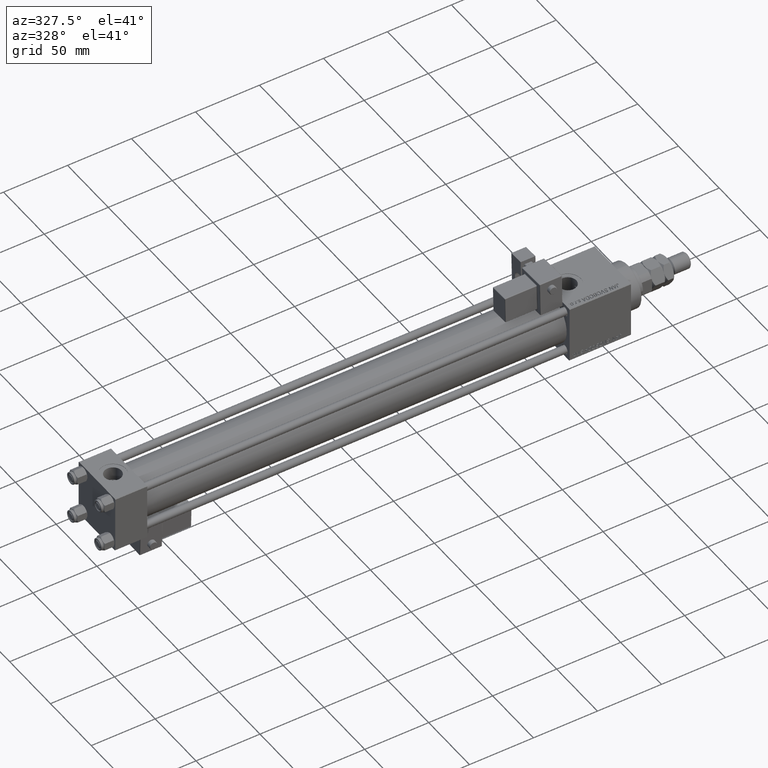
[diagram: clean part render]
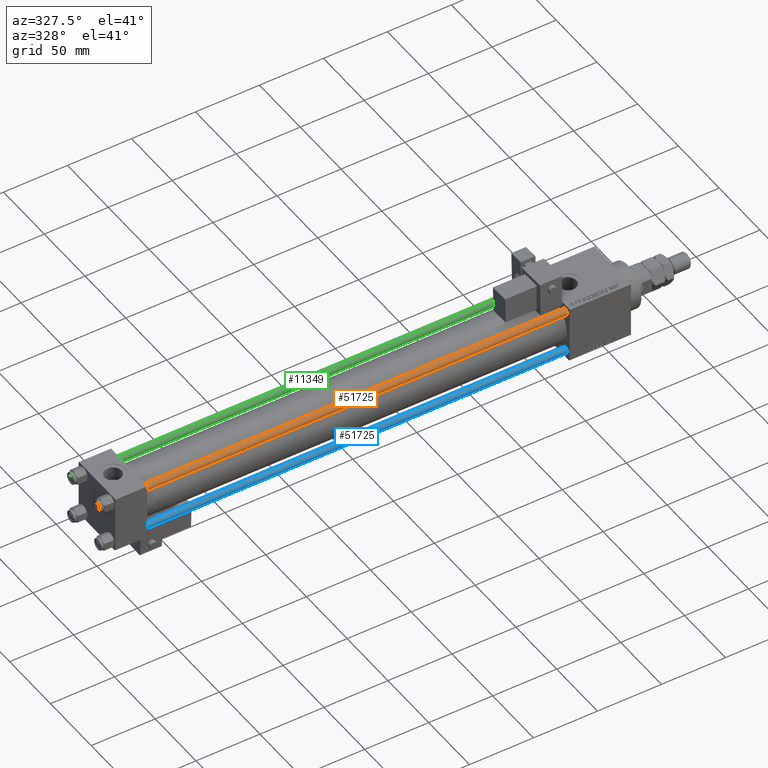
[diagram: same view with three faces highlighted in distinct colors, each labeled with its STEP entity id]
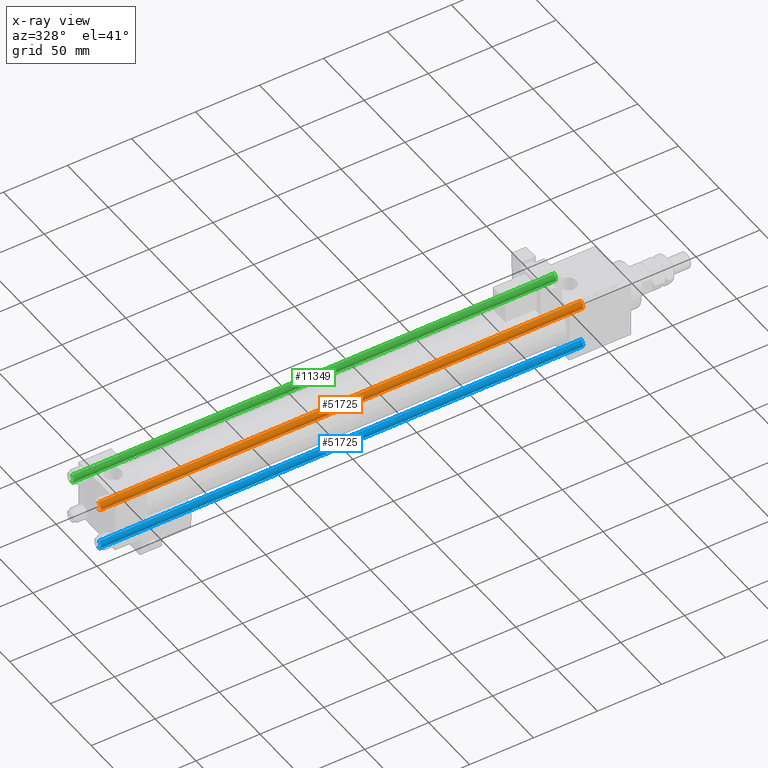
[diagram: x-ray of the same camera — body ghosted, the three highlighted faces saturated]
A machine part, auxiliary view with three faces highlighted in distinct colors.
The next image is the same camera in x-ray (body ghosted, the three faces saturated) — at least one of them is partly hidden behind the body in this view.
Their STEP definitions:

[orange] entity #51725 — the highlighted cylindrical surface (edge-blend (fillet) strip) has radius 3 mm, axis along (1, 0, -0).
#35 = AXIS2_PLACEMENT_3D ( 'NONE', #48968, #53475, #53202 ) ;
#2087 = ORIENTED_EDGE ( 'NONE', *, *, #38308, .T. ) ;
#2666 = FACE_OUTER_BOUND ( 'NONE', #18021, .T. ) ;
#2947 = DIRECTION ( 'NONE',  ( -1.000000000000000000, 0.000000000000000000, 0.000000000000000000 ) ) ;
#3565 = CARTESIAN_POINT ( 'NONE',  ( 0.000000000000000000, 0.000000000000000000, 377.5000000000000000 ) ) ;
#4309 = VERTEX_POINT ( 'NONE', #33266 ) ;
#4481 = DIRECTION ( 'NONE',  ( -0.000000000000000000, -0.000000000000000000, -1.000000000000000000 ) ) ;
#5126 = AXIS2_PLACEMENT_3D ( 'NONE', #54209, #32789, #2947 ) ;
#7128 = ORIENTED_EDGE ( 'NONE', *, *, #33779, .T. ) ;
#8696 = LINE ( 'NONE', #43047, #17044 ) ;
#10234 = EDGE_CURVE ( 'NONE', #27738, #10475, #8696, .T. ) ;
#10475 = VERTEX_POINT ( 'NONE', #44383 ) ;
#11343 = CIRCLE ( 'NONE', #50913, 3.000000000000000444 ) ;
#11694 = CYLINDRICAL_SURFACE ( 'NONE', #5126, 3.000000000000000444 ) ;
#17044 = VECTOR ( 'NONE', #4481, 1000.000000000000000 ) ;
#17343 = DIRECTION ( 'NONE',  ( 1.000000000000000000, 0.000000000000000000, 0.000000000000000000 ) ) ;
#18021 = EDGE_LOOP ( 'NONE', ( #42609, #7128, #2087, #49766 ) ) ;
#20180 = VERTEX_POINT ( 'NONE', #28979 ) ;
#27738 = VERTEX_POINT ( 'NONE', #53331 ) ;
#28979 = CARTESIAN_POINT ( 'NONE',  ( 3.000000000000000444, 3.673940397442060361E-16, 0.5000000000000004441 ) ) ;
#32789 = DIRECTION ( 'NONE',  ( -0.000000000000000000, -0.000000000000000000, -1.000000000000000000 ) ) ;
#33266 = CARTESIAN_POINT ( 'NONE',  ( 3.000000000000000444, 3.673940397442060361E-16, 377.5000000000000000 ) ) ;
#33779 = EDGE_CURVE ( 'NONE', #4309, #20180, #37255, .T. ) ;
#37255 = LINE ( 'NONE', #54451, #43924 ) ;
#38308 = EDGE_CURVE ( 'NONE', #20180, #10475, #53132, .T. ) ;
#42047 = DIRECTION ( 'NONE',  ( -0.000000000000000000, -0.000000000000000000, -1.000000000000000000 ) ) ;
#42609 = ORIENTED_EDGE ( 'NONE', *, *, #50432, .T. ) ;
#43047 = CARTESIAN_POINT ( 'NONE',  ( -3.000000000000000444, 0.000000000000000000, 378.0000000000000000 ) ) ;
#43924 = VECTOR ( 'NONE', #42047, 1000.000000000000000 ) ;
#44383 = CARTESIAN_POINT ( 'NONE',  ( -3.000000000000000444, 0.000000000000000000, 0.5000000000000004441 ) ) ;
#48968 = CARTESIAN_POINT ( 'NONE',  ( 0.000000000000000000, 0.000000000000000000, 0.5000000000000004441 ) ) ;
#49766 = ORIENTED_EDGE ( 'NONE', *, *, #10234, .F. ) ;
#50432 = EDGE_CURVE ( 'NONE', #27738, #4309, #11343, .T. ) ;
#50913 = AXIS2_PLACEMENT_3D ( 'NONE', #3565, #51442, #17343 ) ;
#51442 = DIRECTION ( 'NONE',  ( 0.000000000000000000, 0.000000000000000000, -1.000000000000000000 ) ) ;
#51725 = ADVANCED_FACE ( 'NONE', ( #2666 ), #11694, .T. ) ;
#53132 = CIRCLE ( 'NONE', #35, 3.000000000000000444 ) ;
#53202 = DIRECTION ( 'NONE',  ( 1.000000000000000000, 0.000000000000000000, 0.000000000000000000 ) ) ;
#53331 = CARTESIAN_POINT ( 'NONE',  ( -3.000000000000000444, 0.000000000000000000, 377.5000000000000000 ) ) ;
#53475 = DIRECTION ( 'NONE',  ( -0.000000000000000000, -0.000000000000000000, 1.000000000000000000 ) ) ;
#54209 = CARTESIAN_POINT ( 'NONE',  ( 0.000000000000000000, 0.000000000000000000, 378.0000000000000000 ) ) ;
#54451 = CARTESIAN_POINT ( 'NONE',  ( 3.000000000000000444, 3.673940397442060361E-16, 378.0000000000000000 ) ) ;

[blue] entity #51725 — the highlighted cylindrical surface (edge-blend (fillet) strip) has radius 3 mm, axis along (-1, -0, -0).
#35 = AXIS2_PLACEMENT_3D ( 'NONE', #48968, #53475, #53202 ) ;
#2087 = ORIENTED_EDGE ( 'NONE', *, *, #38308, .T. ) ;
#2666 = FACE_OUTER_BOUND ( 'NONE', #18021, .T. ) ;
#2947 = DIRECTION ( 'NONE',  ( -1.000000000000000000, 0.000000000000000000, 0.000000000000000000 ) ) ;
#3565 = CARTESIAN_POINT ( 'NONE',  ( 0.000000000000000000, 0.000000000000000000, 377.5000000000000000 ) ) ;
#4309 = VERTEX_POINT ( 'NONE', #33266 ) ;
#4481 = DIRECTION ( 'NONE',  ( -0.000000000000000000, -0.000000000000000000, -1.000000000000000000 ) ) ;
#5126 = AXIS2_PLACEMENT_3D ( 'NONE', #54209, #32789, #2947 ) ;
#7128 = ORIENTED_EDGE ( 'NONE', *, *, #33779, .T. ) ;
#8696 = LINE ( 'NONE', #43047, #17044 ) ;
#10234 = EDGE_CURVE ( 'NONE', #27738, #10475, #8696, .T. ) ;
#10475 = VERTEX_POINT ( 'NONE', #44383 ) ;
#11343 = CIRCLE ( 'NONE', #50913, 3.000000000000000444 ) ;
#11694 = CYLINDRICAL_SURFACE ( 'NONE', #5126, 3.000000000000000444 ) ;
#17044 = VECTOR ( 'NONE', #4481, 1000.000000000000000 ) ;
#17343 = DIRECTION ( 'NONE',  ( 1.000000000000000000, 0.000000000000000000, 0.000000000000000000 ) ) ;
#18021 = EDGE_LOOP ( 'NONE', ( #42609, #7128, #2087, #49766 ) ) ;
#20180 = VERTEX_POINT ( 'NONE', #28979 ) ;
#27738 = VERTEX_POINT ( 'NONE', #53331 ) ;
#28979 = CARTESIAN_POINT ( 'NONE',  ( 3.000000000000000444, 3.673940397442060361E-16, 0.5000000000000004441 ) ) ;
#32789 = DIRECTION ( 'NONE',  ( -0.000000000000000000, -0.000000000000000000, -1.000000000000000000 ) ) ;
#33266 = CARTESIAN_POINT ( 'NONE',  ( 3.000000000000000444, 3.673940397442060361E-16, 377.5000000000000000 ) ) ;
#33779 = EDGE_CURVE ( 'NONE', #4309, #20180, #37255, .T. ) ;
#37255 = LINE ( 'NONE', #54451, #43924 ) ;
#38308 = EDGE_CURVE ( 'NONE', #20180, #10475, #53132, .T. ) ;
#42047 = DIRECTION ( 'NONE',  ( -0.000000000000000000, -0.000000000000000000, -1.000000000000000000 ) ) ;
#42609 = ORIENTED_EDGE ( 'NONE', *, *, #50432, .T. ) ;
#43047 = CARTESIAN_POINT ( 'NONE',  ( -3.000000000000000444, 0.000000000000000000, 378.0000000000000000 ) ) ;
#43924 = VECTOR ( 'NONE', #42047, 1000.000000000000000 ) ;
#44383 = CARTESIAN_POINT ( 'NONE',  ( -3.000000000000000444, 0.000000000000000000, 0.5000000000000004441 ) ) ;
#48968 = CARTESIAN_POINT ( 'NONE',  ( 0.000000000000000000, 0.000000000000000000, 0.5000000000000004441 ) ) ;
#49766 = ORIENTED_EDGE ( 'NONE', *, *, #10234, .F. ) ;
#50432 = EDGE_CURVE ( 'NONE', #27738, #4309, #11343, .T. ) ;
#50913 = AXIS2_PLACEMENT_3D ( 'NONE', #3565, #51442, #17343 ) ;
#51442 = DIRECTION ( 'NONE',  ( 0.000000000000000000, 0.000000000000000000, -1.000000000000000000 ) ) ;
#51725 = ADVANCED_FACE ( 'NONE', ( #2666 ), #11694, .T. ) ;
#53132 = CIRCLE ( 'NONE', #35, 3.000000000000000444 ) ;
#53202 = DIRECTION ( 'NONE',  ( 1.000000000000000000, 0.000000000000000000, 0.000000000000000000 ) ) ;
#53331 = CARTESIAN_POINT ( 'NONE',  ( -3.000000000000000444, 0.000000000000000000, 377.5000000000000000 ) ) ;
#53475 = DIRECTION ( 'NONE',  ( -0.000000000000000000, -0.000000000000000000, 1.000000000000000000 ) ) ;
#54209 = CARTESIAN_POINT ( 'NONE',  ( 0.000000000000000000, 0.000000000000000000, 378.0000000000000000 ) ) ;
#54451 = CARTESIAN_POINT ( 'NONE',  ( 3.000000000000000444, 3.673940397442060361E-16, 378.0000000000000000 ) ) ;

[green] entity #11349 — the highlighted cylindrical surface (edge-blend (fillet) strip) has radius 3 mm, axis along (-1, 0, 0).
#2097 = ORIENTED_EDGE ( 'NONE', *, *, #33779, .F. ) ;
#4309 = VERTEX_POINT ( 'NONE', #33266 ) ;
#4481 = DIRECTION ( 'NONE',  ( -0.000000000000000000, -0.000000000000000000, -1.000000000000000000 ) ) ;
#8696 = LINE ( 'NONE', #43047, #17044 ) ;
#10234 = EDGE_CURVE ( 'NONE', #27738, #10475, #8696, .T. ) ;
#10475 = VERTEX_POINT ( 'NONE', #44383 ) ;
#11349 = ADVANCED_FACE ( 'NONE', ( #12599 ), #54859, .T. ) ;
#12599 = FACE_OUTER_BOUND ( 'NONE', #35927, .T. ) ;
#13790 = EDGE_CURVE ( 'NONE', #4309, #27738, #41487, .T. ) ;
#14476 = DIRECTION ( 'NONE',  ( 1.000000000000000000, 0.000000000000000000, 0.000000000000000000 ) ) ;
#15985 = DIRECTION ( 'NONE',  ( -1.000000000000000000, 0.000000000000000000, 0.000000000000000000 ) ) ;
#17044 = VECTOR ( 'NONE', #4481, 1000.000000000000000 ) ;
#18669 = DIRECTION ( 'NONE',  ( -0.000000000000000000, -0.000000000000000000, 1.000000000000000000 ) ) ;
#20030 = AXIS2_PLACEMENT_3D ( 'NONE', #40897, #18669, #35845 ) ;
#20180 = VERTEX_POINT ( 'NONE', #28979 ) ;
#27738 = VERTEX_POINT ( 'NONE', #53331 ) ;
#27932 = AXIS2_PLACEMENT_3D ( 'NONE', #28974, #28695, #15985 ) ;
#28125 = CIRCLE ( 'NONE', #20030, 3.000000000000000444 ) ;
#28695 = DIRECTION ( 'NONE',  ( -0.000000000000000000, -0.000000000000000000, -1.000000000000000000 ) ) ;
#28974 = CARTESIAN_POINT ( 'NONE',  ( 0.000000000000000000, 0.000000000000000000, 378.0000000000000000 ) ) ;
#28979 = CARTESIAN_POINT ( 'NONE',  ( 3.000000000000000444, 3.673940397442060361E-16, 0.5000000000000004441 ) ) ;
#31380 = DIRECTION ( 'NONE',  ( 0.000000000000000000, 0.000000000000000000, -1.000000000000000000 ) ) ;
#33266 = CARTESIAN_POINT ( 'NONE',  ( 3.000000000000000444, 3.673940397442060361E-16, 377.5000000000000000 ) ) ;
#33779 = EDGE_CURVE ( 'NONE', #4309, #20180, #37255, .T. ) ;
#34283 = AXIS2_PLACEMENT_3D ( 'NONE', #40093, #31380, #14476 ) ;
#35845 = DIRECTION ( 'NONE',  ( 1.000000000000000000, 0.000000000000000000, 0.000000000000000000 ) ) ;
#35927 = EDGE_LOOP ( 'NONE', ( #2097, #52199, #36007, #45620 ) ) ;
#36007 = ORIENTED_EDGE ( 'NONE', *, *, #10234, .T. ) ;
#37255 = LINE ( 'NONE', #54451, #43924 ) ;
#40093 = CARTESIAN_POINT ( 'NONE',  ( 0.000000000000000000, 0.000000000000000000, 377.5000000000000000 ) ) ;
#40897 = CARTESIAN_POINT ( 'NONE',  ( 0.000000000000000000, 0.000000000000000000, 0.5000000000000004441 ) ) ;
#41487 = CIRCLE ( 'NONE', #34283, 3.000000000000000444 ) ;
#42047 = DIRECTION ( 'NONE',  ( -0.000000000000000000, -0.000000000000000000, -1.000000000000000000 ) ) ;
#43047 = CARTESIAN_POINT ( 'NONE',  ( -3.000000000000000444, 0.000000000000000000, 378.0000000000000000 ) ) ;
#43924 = VECTOR ( 'NONE', #42047, 1000.000000000000000 ) ;
#44383 = CARTESIAN_POINT ( 'NONE',  ( -3.000000000000000444, 0.000000000000000000, 0.5000000000000004441 ) ) ;
#45620 = ORIENTED_EDGE ( 'NONE', *, *, #45903, .T. ) ;
#45903 = EDGE_CURVE ( 'NONE', #10475, #20180, #28125, .T. ) ;
#52199 = ORIENTED_EDGE ( 'NONE', *, *, #13790, .T. ) ;
#53331 = CARTESIAN_POINT ( 'NONE',  ( -3.000000000000000444, 0.000000000000000000, 377.5000000000000000 ) ) ;
#54451 = CARTESIAN_POINT ( 'NONE',  ( 3.000000000000000444, 3.673940397442060361E-16, 378.0000000000000000 ) ) ;
#54859 = CYLINDRICAL_SURFACE ( 'NONE', #27932, 3.000000000000000444 ) ;